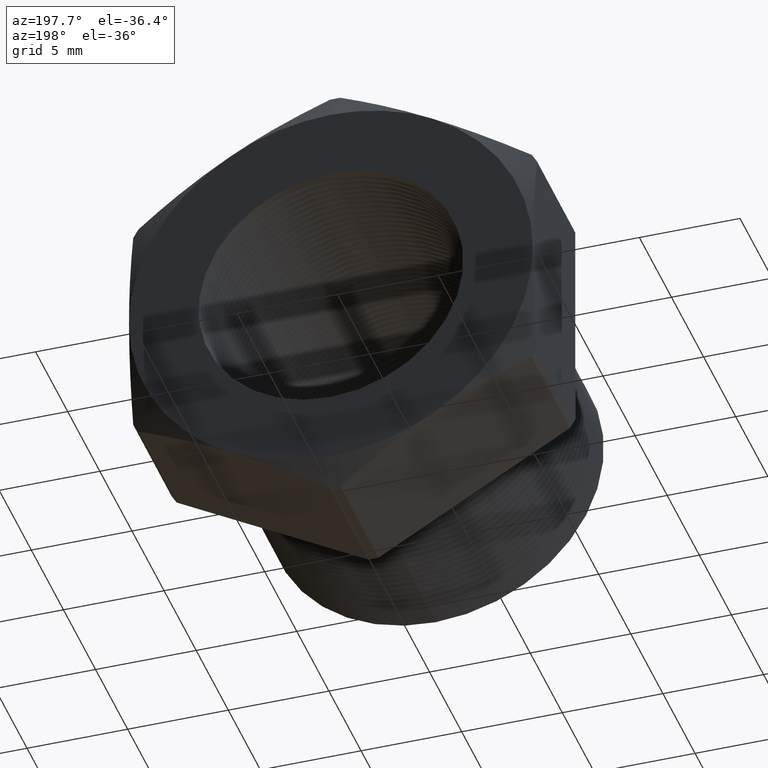
[diagram: clean part render]
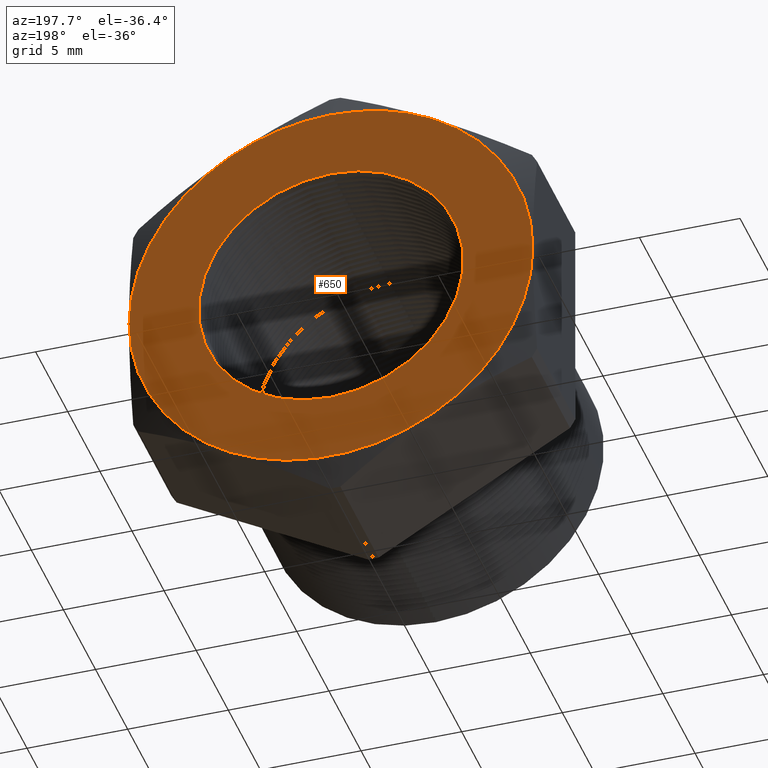
[diagram: same view with one face highlighted and labeled with its STEP entity id]
A machine part, auxiliary view. The second image highlights one B-rep face of the part: STEP entity #650.
In plain terms, the highlighted planar face has unit normal (0, 1, 0).
Its self-contained STEP definition (entity closure, byte-faithful):
#650 = ADVANCED_FACE ( 'NONE', ( #2894, #2893 ), #2892, .T. ) ;
#689 = ORIENTED_EDGE ( 'NONE', *, *, #690, .T. ) ;
#690 = EDGE_CURVE ( 'NONE', #718, #691, #3005, .T. ) ;
#691 = VERTEX_POINT ( 'NONE', #3000 ) ;
#692 = ORIENTED_EDGE ( 'NONE', *, *, #693, .T. ) ;
#693 = EDGE_CURVE ( 'NONE', #691, #694, #2999, .T. ) ;
#694 = VERTEX_POINT ( 'NONE', #2994 ) ;
#695 = ORIENTED_EDGE ( 'NONE', *, *, #696, .T. ) ;
#696 = EDGE_CURVE ( 'NONE', #694, #711, #2992, .T. ) ;
#704 = EDGE_LOOP ( 'NONE', ( #705, #707 ) ) ;
#705 = ORIENTED_EDGE ( 'NONE', *, *, #706, .T. ) ;
#706 = EDGE_CURVE ( 'NONE', #5941, #5961, #3038, .T. ) ;
#707 = ORIENTED_EDGE ( 'NONE', *, *, #5971, .T. ) ;
#708 = EDGE_LOOP ( 'NONE', ( #709, #712, #713, #716, #689, #692, #695 ) ) ;
#709 = ORIENTED_EDGE ( 'NONE', *, *, #710, .T. ) ;
#710 = EDGE_CURVE ( 'NONE', #711, #1447, #3033, .T. ) ;
#711 = VERTEX_POINT ( 'NONE', #3028 ) ;
#712 = ORIENTED_EDGE ( 'NONE', *, *, #1454, .T. ) ;
#713 = ORIENTED_EDGE ( 'NONE', *, *, #714, .T. ) ;
#714 = EDGE_CURVE ( 'NONE', #1450, #715, #3027, .T. ) ;
#715 = VERTEX_POINT ( 'NONE', #3022 ) ;
#716 = ORIENTED_EDGE ( 'NONE', *, *, #717, .T. ) ;
#717 = EDGE_CURVE ( 'NONE', #715, #718, #3021, .T. ) ;
#718 = VERTEX_POINT ( 'NONE', #3016 ) ;
#1447 = VERTEX_POINT ( 'NONE', #4562 ) ;
#1450 = VERTEX_POINT ( 'NONE', #4559 ) ;
#1454 = EDGE_CURVE ( 'NONE', #1447, #1450, #4540, .T. ) ;
#2891 = CARTESIAN_POINT ( 'NONE',  ( 0.4502999999999999800, 0.4075548905829479200, 0.0000000000000000000 ) ) ;
#2892 = PLANE ( 'NONE',  #2952 ) ;
#2893 = FACE_OUTER_BOUND ( 'NONE', #708, .T. ) ;
#2894 = FACE_BOUND ( 'NONE', #704, .T. ) ;
#2950 = DIRECTION ( 'NONE',  ( 0.0000000000000000000, -0.0000000000000000000, 1.000000000000000000 ) ) ;
#2951 = DIRECTION ( 'NONE',  ( 0.0000000000000000000, 1.000000000000000000, 0.0000000000000000000 ) ) ;
#2952 = AXIS2_PLACEMENT_3D ( 'NONE', #2891, #2951, #2950 ) ;
#2988 = DIRECTION ( 'NONE',  ( 0.0000000000000000000, 0.0000000000000000000, 1.000000000000000000 ) ) ;
#2989 = DIRECTION ( 'NONE',  ( 0.0000000000000000000, 1.000000000000000000, 0.0000000000000000000 ) ) ;
#2990 = CARTESIAN_POINT ( 'NONE',  ( 0.0000000000000000000, 0.4075548905829479200, 0.0000000000000000000 ) ) ;
#2991 = AXIS2_PLACEMENT_3D ( 'NONE', #2990, #2989, #2988 ) ;
#2992 = CIRCLE ( 'NONE', #2991, 0.3949999999999999600 ) ;
#2994 = CARTESIAN_POINT ( 'NONE',  ( -0.3949999999999999600, 0.4075548905829479200, 0.0000000000000000000 ) ) ;
#2995 = DIRECTION ( 'NONE',  ( 0.0000000000000000000, 0.0000000000000000000, 1.000000000000000000 ) ) ;
#2996 = DIRECTION ( 'NONE',  ( 0.0000000000000000000, 1.000000000000000000, 0.0000000000000000000 ) ) ;
#2997 = CARTESIAN_POINT ( 'NONE',  ( 0.0000000000000000000, 0.4075548905829479200, 0.0000000000000000000 ) ) ;
#2998 = AXIS2_PLACEMENT_3D ( 'NONE', #2997, #2996, #2995 ) ;
#2999 = CIRCLE ( 'NONE', #2998, 0.3949999999999999600 ) ;
#3000 = CARTESIAN_POINT ( 'NONE',  ( -0.1975000000000000900, 0.4075548905829479200, -0.3420800344948533000 ) ) ;
#3001 = DIRECTION ( 'NONE',  ( 0.0000000000000000000, 0.0000000000000000000, 1.000000000000000000 ) ) ;
#3002 = DIRECTION ( 'NONE',  ( 0.0000000000000000000, 1.000000000000000000, 0.0000000000000000000 ) ) ;
#3003 = CARTESIAN_POINT ( 'NONE',  ( 0.0000000000000000000, 0.4075548905829479200, 0.0000000000000000000 ) ) ;
#3004 = AXIS2_PLACEMENT_3D ( 'NONE', #3003, #3002, #3001 ) ;
#3005 = CIRCLE ( 'NONE', #3004, 0.3949999999999999600 ) ;
#3016 = CARTESIAN_POINT ( 'NONE',  ( 0.1975000000000000100, 0.4075548905829479200, -0.3420800344948534100 ) ) ;
#3017 = DIRECTION ( 'NONE',  ( 0.0000000000000000000, 0.0000000000000000000, 1.000000000000000000 ) ) ;
#3018 = DIRECTION ( 'NONE',  ( 0.0000000000000000000, 1.000000000000000000, 0.0000000000000000000 ) ) ;
#3019 = CARTESIAN_POINT ( 'NONE',  ( 0.0000000000000000000, 0.4075548905829479200, 0.0000000000000000000 ) ) ;
#3020 = AXIS2_PLACEMENT_3D ( 'NONE', #3019, #3018, #3017 ) ;
#3021 = CIRCLE ( 'NONE', #3020, 0.3949999999999999600 ) ;
#3022 = CARTESIAN_POINT ( 'NONE',  ( 0.3949999999999999600, 0.4075548905829479200, 1.182924880895400300E-016 ) ) ;
#3023 = DIRECTION ( 'NONE',  ( 0.0000000000000000000, 0.0000000000000000000, 1.000000000000000000 ) ) ;
#3024 = DIRECTION ( 'NONE',  ( 0.0000000000000000000, 1.000000000000000000, 0.0000000000000000000 ) ) ;
#3025 = CARTESIAN_POINT ( 'NONE',  ( 0.0000000000000000000, 0.4075548905829479200, 0.0000000000000000000 ) ) ;
#3026 = AXIS2_PLACEMENT_3D ( 'NONE', #3025, #3024, #3023 ) ;
#3027 = CIRCLE ( 'NONE', #3026, 0.3949999999999999600 ) ;
#3028 = CARTESIAN_POINT ( 'NONE',  ( -0.1975000000000000100, 0.4075548905829479200, 0.3420800344948533600 ) ) ;
#3029 = DIRECTION ( 'NONE',  ( 0.0000000000000000000, 0.0000000000000000000, 1.000000000000000000 ) ) ;
#3030 = DIRECTION ( 'NONE',  ( 0.0000000000000000000, 1.000000000000000000, 0.0000000000000000000 ) ) ;
#3031 = CARTESIAN_POINT ( 'NONE',  ( 0.0000000000000000000, 0.4075548905829479200, 0.0000000000000000000 ) ) ;
#3032 = AXIS2_PLACEMENT_3D ( 'NONE', #3031, #3030, #3029 ) ;
#3033 = CIRCLE ( 'NONE', #3032, 0.3949999999999999600 ) ;
#3034 = DIRECTION ( 'NONE',  ( 0.0000000000000000000, 0.0000000000000000000, -1.000000000000000000 ) ) ;
#3035 = DIRECTION ( 'NONE',  ( -0.0000000000000000000, -1.000000000000000000, -0.0000000000000000000 ) ) ;
#3036 = CARTESIAN_POINT ( 'NONE',  ( 0.0000000000000000000, 0.4075548905829479200, 0.0000000000000000000 ) ) ;
#3037 = AXIS2_PLACEMENT_3D ( 'NONE', #3036, #3035, #3034 ) ;
#3038 = CIRCLE ( 'NONE', #3037, 0.2589880461203001900 ) ;
#4536 = DIRECTION ( 'NONE',  ( 0.0000000000000000000, 0.0000000000000000000, 1.000000000000000000 ) ) ;
#4537 = DIRECTION ( 'NONE',  ( 0.0000000000000000000, 1.000000000000000000, 0.0000000000000000000 ) ) ;
#4538 = CARTESIAN_POINT ( 'NONE',  ( 0.0000000000000000000, 0.4075548905829479200, 0.0000000000000000000 ) ) ;
#4539 = AXIS2_PLACEMENT_3D ( 'NONE', #4538, #4537, #4536 ) ;
#4540 = CIRCLE ( 'NONE', #4539, 0.3949999999999999600 ) ;
#4559 = CARTESIAN_POINT ( 'NONE',  ( 0.1975000000000001800, 0.4075548905829479700, 0.3420800344948533000 ) ) ;
#4562 = CARTESIAN_POINT ( 'NONE',  ( 0.0000000000000000000, 0.4075548905829479200, 0.3949999999999999600 ) ) ;
#5941 = VERTEX_POINT ( 'NONE', #7683 ) ;
#5961 = VERTEX_POINT ( 'NONE', #7710 ) ;
#5971 = EDGE_CURVE ( 'NONE', #5961, #5941, #7746, .T. ) ;
#7683 = CARTESIAN_POINT ( 'NONE',  ( 0.0000000000000000000, 0.4075548905829479200, -0.2589880461203001900 ) ) ;
#7710 = CARTESIAN_POINT ( 'NONE',  ( 3.171688816986526800E-017, 0.4075548905829479200, 0.2589880461203001900 ) ) ;
#7742 = DIRECTION ( 'NONE',  ( 0.0000000000000000000, 0.0000000000000000000, -1.000000000000000000 ) ) ;
#7743 = DIRECTION ( 'NONE',  ( -0.0000000000000000000, -1.000000000000000000, -0.0000000000000000000 ) ) ;
#7744 = CARTESIAN_POINT ( 'NONE',  ( 0.0000000000000000000, 0.4075548905829479200, 0.0000000000000000000 ) ) ;
#7745 = AXIS2_PLACEMENT_3D ( 'NONE', #7744, #7743, #7742 ) ;
#7746 = CIRCLE ( 'NONE', #7745, 0.2589880461203001900 ) ;